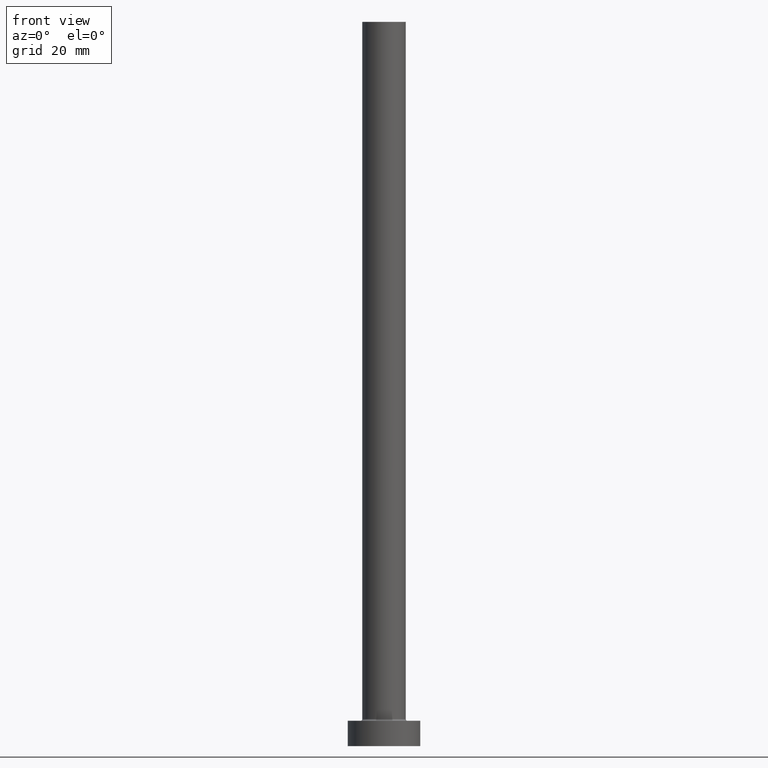
[diagram: clean part render]
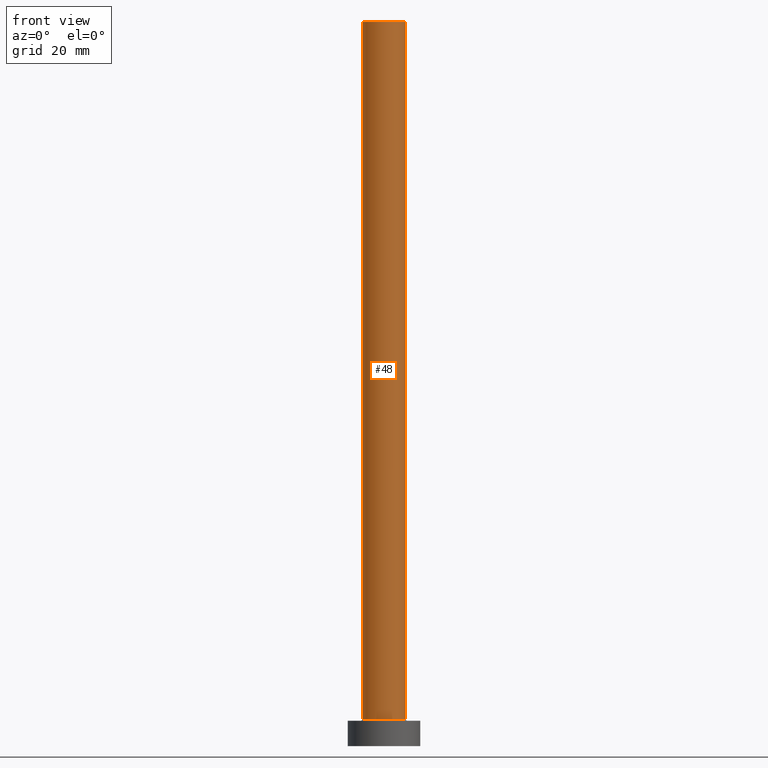
[diagram: same view with one face highlighted and labeled with its STEP entity id]
A machine part, front view. The second image highlights one B-rep face of the part: STEP entity #48.
In plain terms, the highlighted cylindrical surface (edge-blend (fillet) strip) has radius 6 mm, axis along (-0, -0, -1).
Its self-contained STEP definition (entity closure, byte-faithful):
#1 = ORIENTED_EDGE ( 'NONE', *, *, #74, .T. ) ;
#16 = EDGE_LOOP ( 'NONE', ( #183, #306, #404, #1 ) ) ;
#35 = CYLINDRICAL_SURFACE ( 'NONE', #409, 6.000000000000000888 ) ;
#38 = VERTEX_POINT ( 'NONE', #146 ) ;
#48 = ADVANCED_FACE ( 'NONE', ( #206 ), #35, .T. ) ;
#64 = CIRCLE ( 'NONE', #357, 6.000000000000000888 ) ;
#66 = CARTESIAN_POINT ( 'NONE',  ( 6.000000000000000888, 7.347880794884120722E-16, 200.0000000000000000 ) ) ;
#72 = DIRECTION ( 'NONE',  ( -1.000000000000000000, 0.000000000000000000, 0.000000000000000000 ) ) ;
#74 = EDGE_CURVE ( 'NONE', #38, #81, #64, .T. ) ;
#80 = CARTESIAN_POINT ( 'NONE',  ( -6.000000000000000888, 0.000000000000000000, 200.0000000000000000 ) ) ;
#81 = VERTEX_POINT ( 'NONE', #257 ) ;
#105 = CARTESIAN_POINT ( 'NONE',  ( 6.000000000000000888, 7.347880794884120722E-16, 200.0000000000000000 ) ) ;
#116 = CARTESIAN_POINT ( 'NONE',  ( -6.000000000000000888, 0.000000000000000000, 200.0000000000000000 ) ) ;
#131 = EDGE_CURVE ( 'NONE', #445, #187, #272, .T. ) ;
#146 = CARTESIAN_POINT ( 'NONE',  ( -6.000000000000000888, 0.000000000000000000, 7.500000000000007105 ) ) ;
#183 = ORIENTED_EDGE ( 'NONE', *, *, #401, .F. ) ;
#186 = EDGE_CURVE ( 'NONE', #445, #38, #383, .T. ) ;
#187 = VERTEX_POINT ( 'NONE', #105 ) ;
#204 = CARTESIAN_POINT ( 'NONE',  ( 0.000000000000000000, 0.000000000000000000, 200.0000000000000000 ) ) ;
#206 = FACE_OUTER_BOUND ( 'NONE', #16, .T. ) ;
#257 = CARTESIAN_POINT ( 'NONE',  ( 6.000000000000000888, 7.347880794884120722E-16, 7.500000000000007105 ) ) ;
#258 = DIRECTION ( 'NONE',  ( 0.000000000000000000, 0.000000000000000000, 1.000000000000000000 ) ) ;
#272 = CIRCLE ( 'NONE', #331, 6.000000000000000888 ) ;
#282 = VECTOR ( 'NONE', #368, 1000.000000000000000 ) ;
#289 = DIRECTION ( 'NONE',  ( 1.000000000000000000, 0.000000000000000000, 0.000000000000000000 ) ) ;
#306 = ORIENTED_EDGE ( 'NONE', *, *, #131, .F. ) ;
#331 = AXIS2_PLACEMENT_3D ( 'NONE', #391, #364, #333 ) ;
#333 = DIRECTION ( 'NONE',  ( 1.000000000000000000, 0.000000000000000000, 0.000000000000000000 ) ) ;
#357 = AXIS2_PLACEMENT_3D ( 'NONE', #394, #258, #289 ) ;
#364 = DIRECTION ( 'NONE',  ( 0.000000000000000000, 0.000000000000000000, 1.000000000000000000 ) ) ;
#368 = DIRECTION ( 'NONE',  ( -0.000000000000000000, -0.000000000000000000, -1.000000000000000000 ) ) ;
#381 = DIRECTION ( 'NONE',  ( -0.000000000000000000, -0.000000000000000000, -1.000000000000000000 ) ) ;
#383 = LINE ( 'NONE', #116, #282 ) ;
#391 = CARTESIAN_POINT ( 'NONE',  ( 0.000000000000000000, 0.000000000000000000, 200.0000000000000000 ) ) ;
#394 = CARTESIAN_POINT ( 'NONE',  ( 0.000000000000000000, 0.000000000000000000, 7.500000000000007105 ) ) ;
#401 = EDGE_CURVE ( 'NONE', #187, #81, #429, .T. ) ;
#404 = ORIENTED_EDGE ( 'NONE', *, *, #186, .T. ) ;
#409 = AXIS2_PLACEMENT_3D ( 'NONE', #204, #381, #72 ) ;
#419 = VECTOR ( 'NONE', #457, 1000.000000000000000 ) ;
#429 = LINE ( 'NONE', #66, #419 ) ;
#445 = VERTEX_POINT ( 'NONE', #80 ) ;
#457 = DIRECTION ( 'NONE',  ( -0.000000000000000000, -0.000000000000000000, -1.000000000000000000 ) ) ;